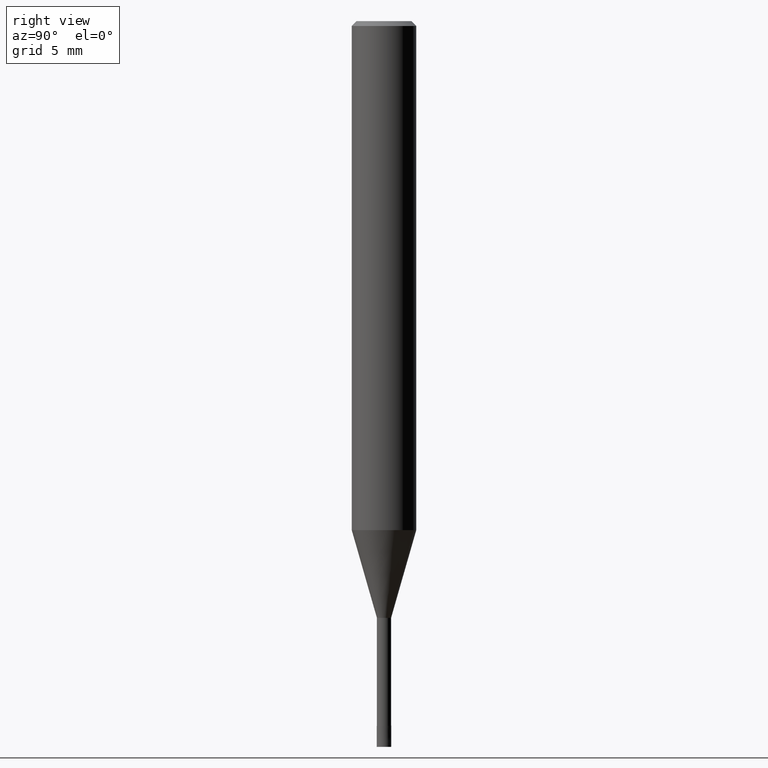
[diagram: clean part render]
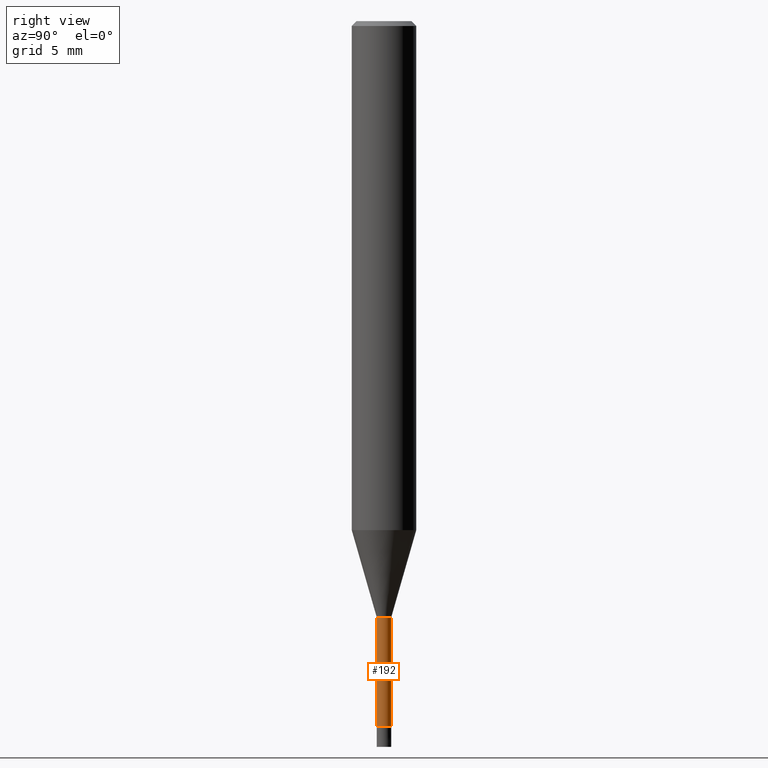
[diagram: same view with one face highlighted and labeled with its STEP entity id]
A machine part, right view. The second image highlights one B-rep face of the part: STEP entity #192.
In plain terms, the highlighted cylindrical surface (edge-blend (fillet) strip) has radius 0.44 mm, axis along (-0, -0, 1).
Its self-contained STEP definition (entity closure, byte-faithful):
#92=VERTEX_POINT('',#229);
#130=VERTEX_POINT('',#272);
#156=EDGE_CURVE('',#130,#92,#304,.T.);
#158=EDGE_CURVE('',#208,#188,#306,.T.);
#180=EDGE_CURVE('',#130,#188,#329,.T.);
#188=VERTEX_POINT('',#338);
#192=ADVANCED_FACE('',(#342),#343,.T.);
#198=EDGE_CURVE('',#92,#208,#350,.T.);
#208=VERTEX_POINT('',#361);
#229=CARTESIAN_POINT('',(0.0,0.43995,-43.7));
#272=CARTESIAN_POINT('',(0.0,0.43995,-37.0));
#304=LINE('',#466,#467);
#306=LINE('',#470,#471);
#329=CIRCLE('',#498,0.43995);
#338=CARTESIAN_POINT('',(5.38765565364155E-017,-0.43995,-37.0));
#342=FACE_OUTER_BOUND('',#515,.T.);
#343=CYLINDRICAL_SURFACE('',#516,0.43995);
#350=CIRCLE('',#525,0.43995);
#361=CARTESIAN_POINT('',(5.38765565364155E-017,-0.43995,-43.7));
#466=CARTESIAN_POINT('',(-5.38765565364155E-017,0.43995,-40.35));
#467=VECTOR('',#639,1.0);
#470=CARTESIAN_POINT('',(5.38765565364155E-017,-0.43995,-40.35));
#471=VECTOR('',#640,1.0);
#498=AXIS2_PLACEMENT_3D('',#664,#665,#666);
#515=EDGE_LOOP('',(#678,#679,#680,#681));
#516=AXIS2_PLACEMENT_3D('',#682,#683,#684);
#525=AXIS2_PLACEMENT_3D('',#696,#697,#698);
#639=DIRECTION('',(0.0,0.0,-1.0));
#640=DIRECTION('',(-0.0,-0.0,1.0));
#664=CARTESIAN_POINT('',(0.0,0.0,-37.0));
#665=DIRECTION('',(0.0,0.0,-1.0));
#666=DIRECTION('',(0.0,1.0,0.0));
#678=ORIENTED_EDGE('',*,*,#156,.F.);
#679=ORIENTED_EDGE('',*,*,#180,.T.);
#680=ORIENTED_EDGE('',*,*,#158,.F.);
#681=ORIENTED_EDGE('',*,*,#198,.F.);
#682=CARTESIAN_POINT('',(0.0,0.0,-40.35));
#683=DIRECTION('',(-0.0,-0.0,1.0));
#684=DIRECTION('',(0.0,1.0,0.0));
#696=CARTESIAN_POINT('',(0.0,0.0,-43.7));
#697=DIRECTION('',(0.0,0.0,-1.0));
#698=DIRECTION('',(0.0,1.0,0.0));